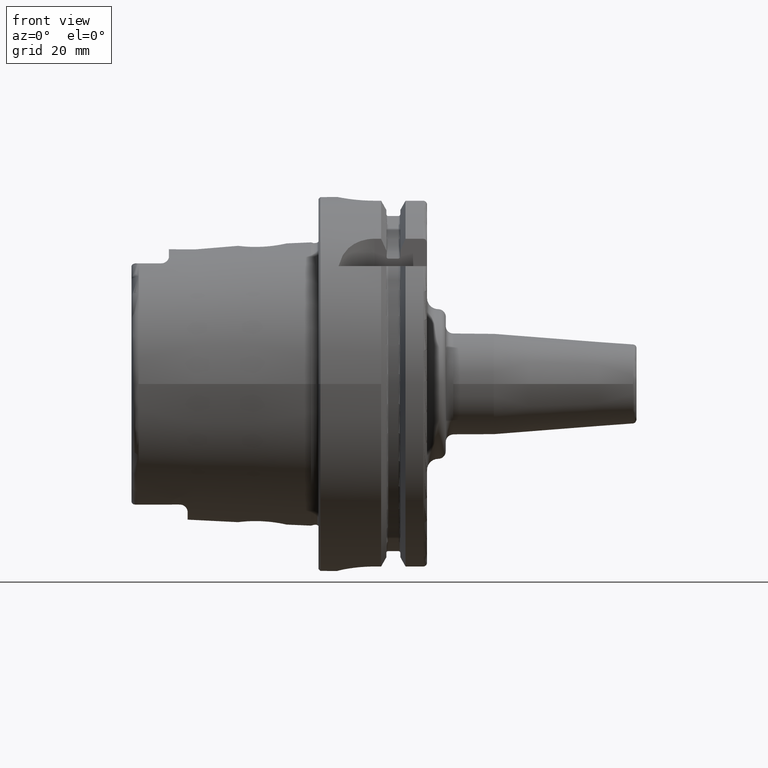
[diagram: clean part render]
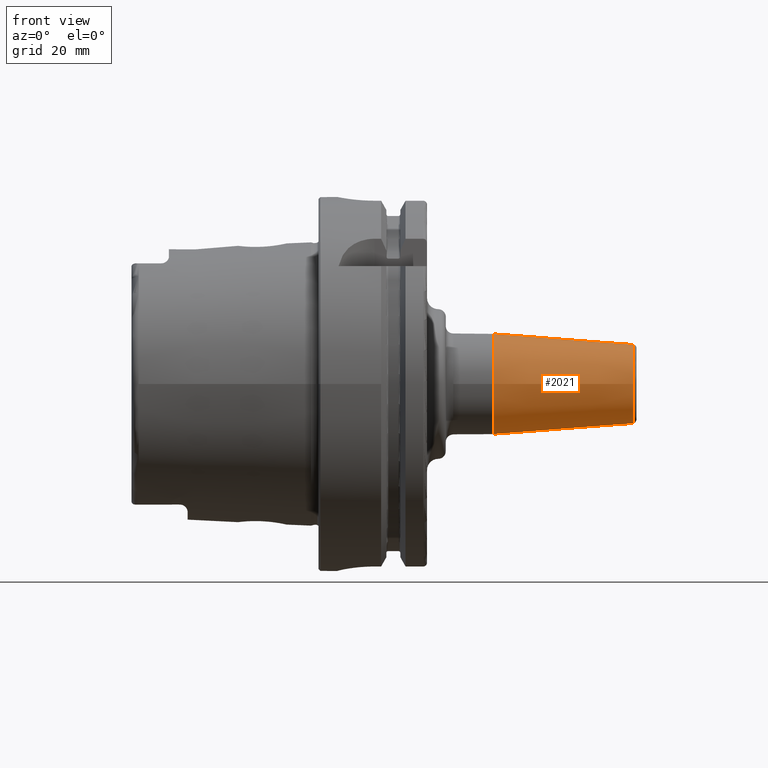
[diagram: same view with one face highlighted and labeled with its STEP entity id]
A machine part, front view. The second image highlights one B-rep face of the part: STEP entity #2021.
In plain terms, the highlighted conical surface has half-angle 4.5 deg.
Its self-contained STEP definition (entity closure, byte-faithful):
#220=FACE_OUTER_BOUND('',#345,.T.);
#345=EDGE_LOOP('',(#1385,#1386,#1387,#1388,#1389));
#475=LINE('',#3112,#581);
#581=VECTOR('',#2477,12.);
#691=CIRCLE('',#2177,10.5725268420749);
#692=CIRCLE('',#2178,10.5725268420749);
#693=CIRCLE('',#2180,13.5);
#831=VERTEX_POINT('',#3105);
#832=VERTEX_POINT('',#3107);
#833=VERTEX_POINT('',#3111);
#1046=EDGE_CURVE('',#831,#832,#691,.T.);
#1047=EDGE_CURVE('',#832,#831,#692,.T.);
#1048=EDGE_CURVE('',#832,#833,#475,.T.);
#1049=EDGE_CURVE('',#833,#833,#693,.T.);
#1385=ORIENTED_EDGE('',*,*,#1047,.F.);
#1386=ORIENTED_EDGE('',*,*,#1048,.T.);
#1387=ORIENTED_EDGE('',*,*,#1049,.T.);
#1388=ORIENTED_EDGE('',*,*,#1048,.F.);
#1389=ORIENTED_EDGE('',*,*,#1046,.F.);
#1998=CONICAL_SURFACE('',#2179,12.,0.0785398163397448);
#2021=ADVANCED_FACE('',(#220),#1998,.T.);
#2177=AXIS2_PLACEMENT_3D('',#3108,#2471,#2472);
#2178=AXIS2_PLACEMENT_3D('',#3109,#2473,#2474);
#2179=AXIS2_PLACEMENT_3D('',#3110,#2475,#2476);
#2180=AXIS2_PLACEMENT_3D('',#3113,#2478,#2479);
#2471=DIRECTION('center_axis',(1.,0.,0.));
#2472=DIRECTION('ref_axis',(0.,-1.,3.06161699786838E-17));
#2473=DIRECTION('center_axis',(1.,0.,0.));
#2474=DIRECTION('ref_axis',(0.,-1.,3.06161699786838E-17));
#2475=DIRECTION('center_axis',(-1.,0.,0.));
#2476=DIRECTION('ref_axis',(0.,1.,0.));
#2477=DIRECTION('',(-0.996917333733128,-0.078459095727845,-9.60846804471011E-18));
#2478=DIRECTION('center_axis',(1.,0.,0.));
#2479=DIRECTION('ref_axis',(0.,0.,-1.));
#3105=CARTESIAN_POINT('',(84.0784590957279,-1.29476111560465E-15,10.5725268420749));
#3107=CARTESIAN_POINT('',(84.0784590957279,-10.5725268420749,-1.29476111560465E-15));
#3108=CARTESIAN_POINT('Origin',(84.0784590957279,0.,-1.61845139450582E-15));
#3109=CARTESIAN_POINT('Origin',(84.0784590957279,0.,-1.61845139450582E-15));
#3110=CARTESIAN_POINT('Origin',(65.9406928957379,0.,0.));
#3111=CARTESIAN_POINT('',(46.8813857914759,-13.5,-1.65327317884893E-15));
#3112=CARTESIAN_POINT('',(65.9406928957379,-12.,-1.46957615897682E-15));
#3113=CARTESIAN_POINT('Origin',(46.8813857914759,0.,0.));